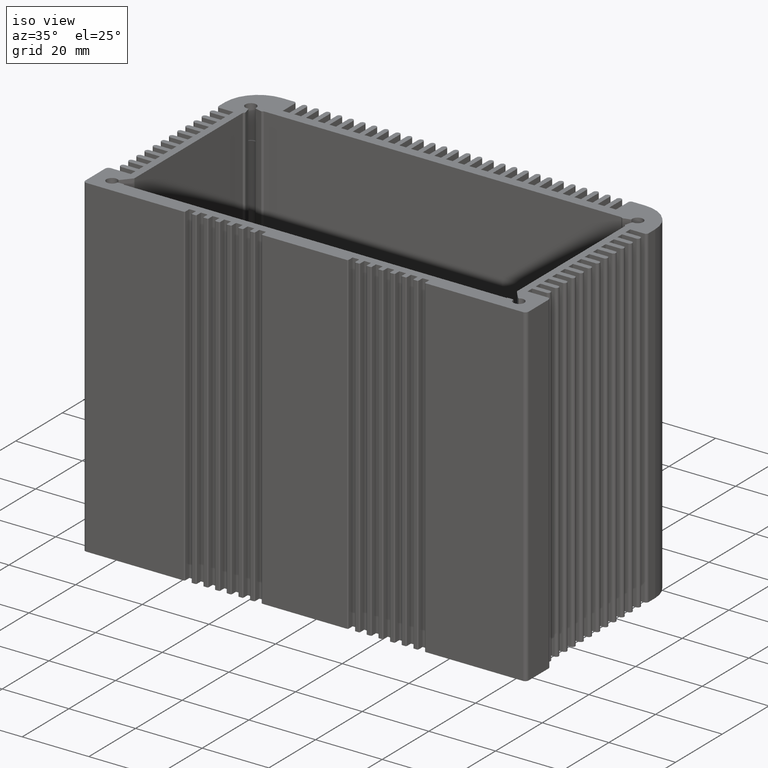
[diagram: clean part render]
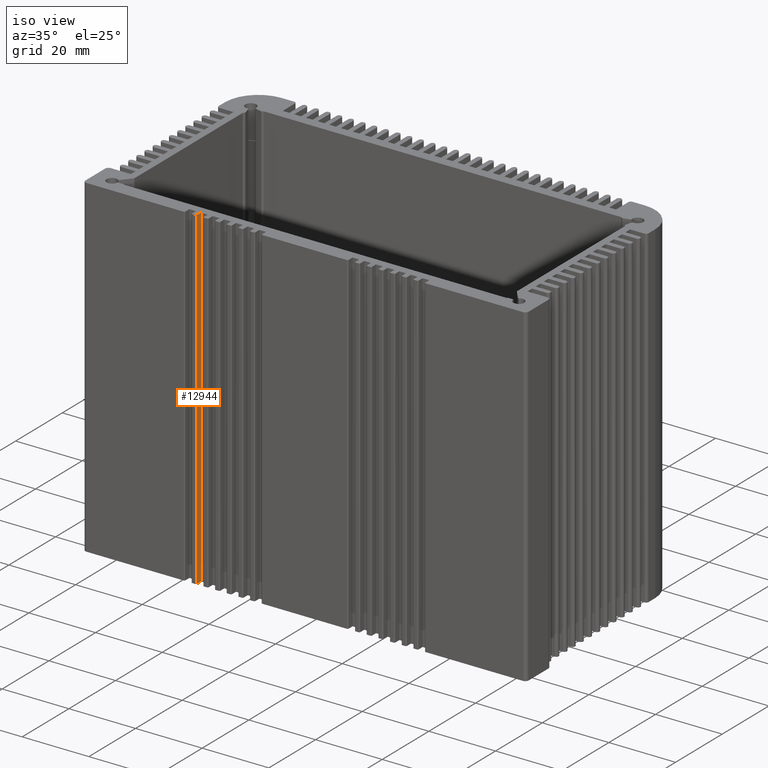
[diagram: same view with one face highlighted and labeled with its STEP entity id]
A machine part, iso view. The second image highlights one B-rep face of the part: STEP entity #12944.
In plain terms, the highlighted planar face has unit normal (-1, -0, 0).
Its self-contained STEP definition (entity closure, byte-faithful):
#232 = EDGE_CURVE ( 'NONE', #7095, #9133, #10679, .T. ) ;
#1022 = DIRECTION ( 'NONE',  ( -0.0000000000000000000, -0.0000000000000000000, -1.000000000000000000 ) ) ;
#1174 = EDGE_LOOP ( 'NONE', ( #6715, #3329, #12044, #1390 ) ) ;
#1390 = ORIENTED_EDGE ( 'NONE', *, *, #7982, .T. ) ;
#1901 = VECTOR ( 'NONE', #7962, 1000.000000000000000 ) ;
#2246 = CARTESIAN_POINT ( 'NONE',  ( -12.52947535880234753, -67.19140371444952109, -50.00000000000000000 ) ) ;
#2393 = VECTOR ( 'NONE', #11788, 1000.000000000000000 ) ;
#2629 = CARTESIAN_POINT ( 'NONE',  ( -12.52947535880234753, -67.19140371444952109, 50.00000000000000000 ) ) ;
#2684 = DIRECTION ( 'NONE',  ( 1.306144734852917365E-13, -1.000000000000000000, 0.0000000000000000000 ) ) ;
#3259 = CARTESIAN_POINT ( 'NONE',  ( -12.52947535880234753, -67.19140371444952109, 50.00000000000000000 ) ) ;
#3329 = ORIENTED_EDGE ( 'NONE', *, *, #10756, .F. ) ;
#4321 = VECTOR ( 'NONE', #1022, 1000.000000000000000 ) ;
#4654 = LINE ( 'NONE', #5226, #4321 ) ;
#4765 = PLANE ( 'NONE',  #11036 ) ;
#4890 = VECTOR ( 'NONE', #9605, 1000.000000000000000 ) ;
#5226 = CARTESIAN_POINT ( 'NONE',  ( -12.52947535880256957, -65.49140371444924824, 50.00000000000000000 ) ) ;
#5424 = CARTESIAN_POINT ( 'NONE',  ( -12.52947535880256957, -65.49140371444924824, 50.00000000000000000 ) ) ;
#6715 = ORIENTED_EDGE ( 'NONE', *, *, #232, .T. ) ;
#7095 = VERTEX_POINT ( 'NONE', #9557 ) ;
#7159 = VERTEX_POINT ( 'NONE', #5424 ) ;
#7612 = CARTESIAN_POINT ( 'NONE',  ( -12.52947535880240260, -67.19140371444940740, 50.00000000000000000 ) ) ;
#7962 = DIRECTION ( 'NONE',  ( -1.306144734852917365E-13, 1.000000000000000000, 0.0000000000000000000 ) ) ;
#7982 = EDGE_CURVE ( 'NONE', #12074, #7095, #8016, .T. ) ;
#8016 = LINE ( 'NONE', #10721, #2393 ) ;
#8387 = EDGE_CURVE ( 'NONE', #12074, #7159, #12970, .T. ) ;
#9008 = DIRECTION ( 'NONE',  ( -1.000000000000000000, -1.306144734852917365E-13, 0.0000000000000000000 ) ) ;
#9133 = VERTEX_POINT ( 'NONE', #12873 ) ;
#9557 = CARTESIAN_POINT ( 'NONE',  ( -12.52947535880240260, -67.19140371444940740, -50.00000000000000000 ) ) ;
#9605 = DIRECTION ( 'NONE',  ( -1.306144734852917365E-13, 1.000000000000000000, 0.0000000000000000000 ) ) ;
#9728 = FACE_OUTER_BOUND ( 'NONE', #1174, .T. ) ;
#10679 = LINE ( 'NONE', #2246, #1901 ) ;
#10721 = CARTESIAN_POINT ( 'NONE',  ( -12.52947535880240260, -67.19140371444940740, 50.00000000000000000 ) ) ;
#10756 = EDGE_CURVE ( 'NONE', #7159, #9133, #4654, .T. ) ;
#11036 = AXIS2_PLACEMENT_3D ( 'NONE', #2629, #9008, #2684 ) ;
#11788 = DIRECTION ( 'NONE',  ( -0.0000000000000000000, -0.0000000000000000000, -1.000000000000000000 ) ) ;
#12044 = ORIENTED_EDGE ( 'NONE', *, *, #8387, .F. ) ;
#12074 = VERTEX_POINT ( 'NONE', #7612 ) ;
#12873 = CARTESIAN_POINT ( 'NONE',  ( -12.52947535880256957, -65.49140371444924824, -50.00000000000000000 ) ) ;
#12944 = ADVANCED_FACE ( 'NONE', ( #9728 ), #4765, .F. ) ;
#12970 = LINE ( 'NONE', #3259, #4890 ) ;